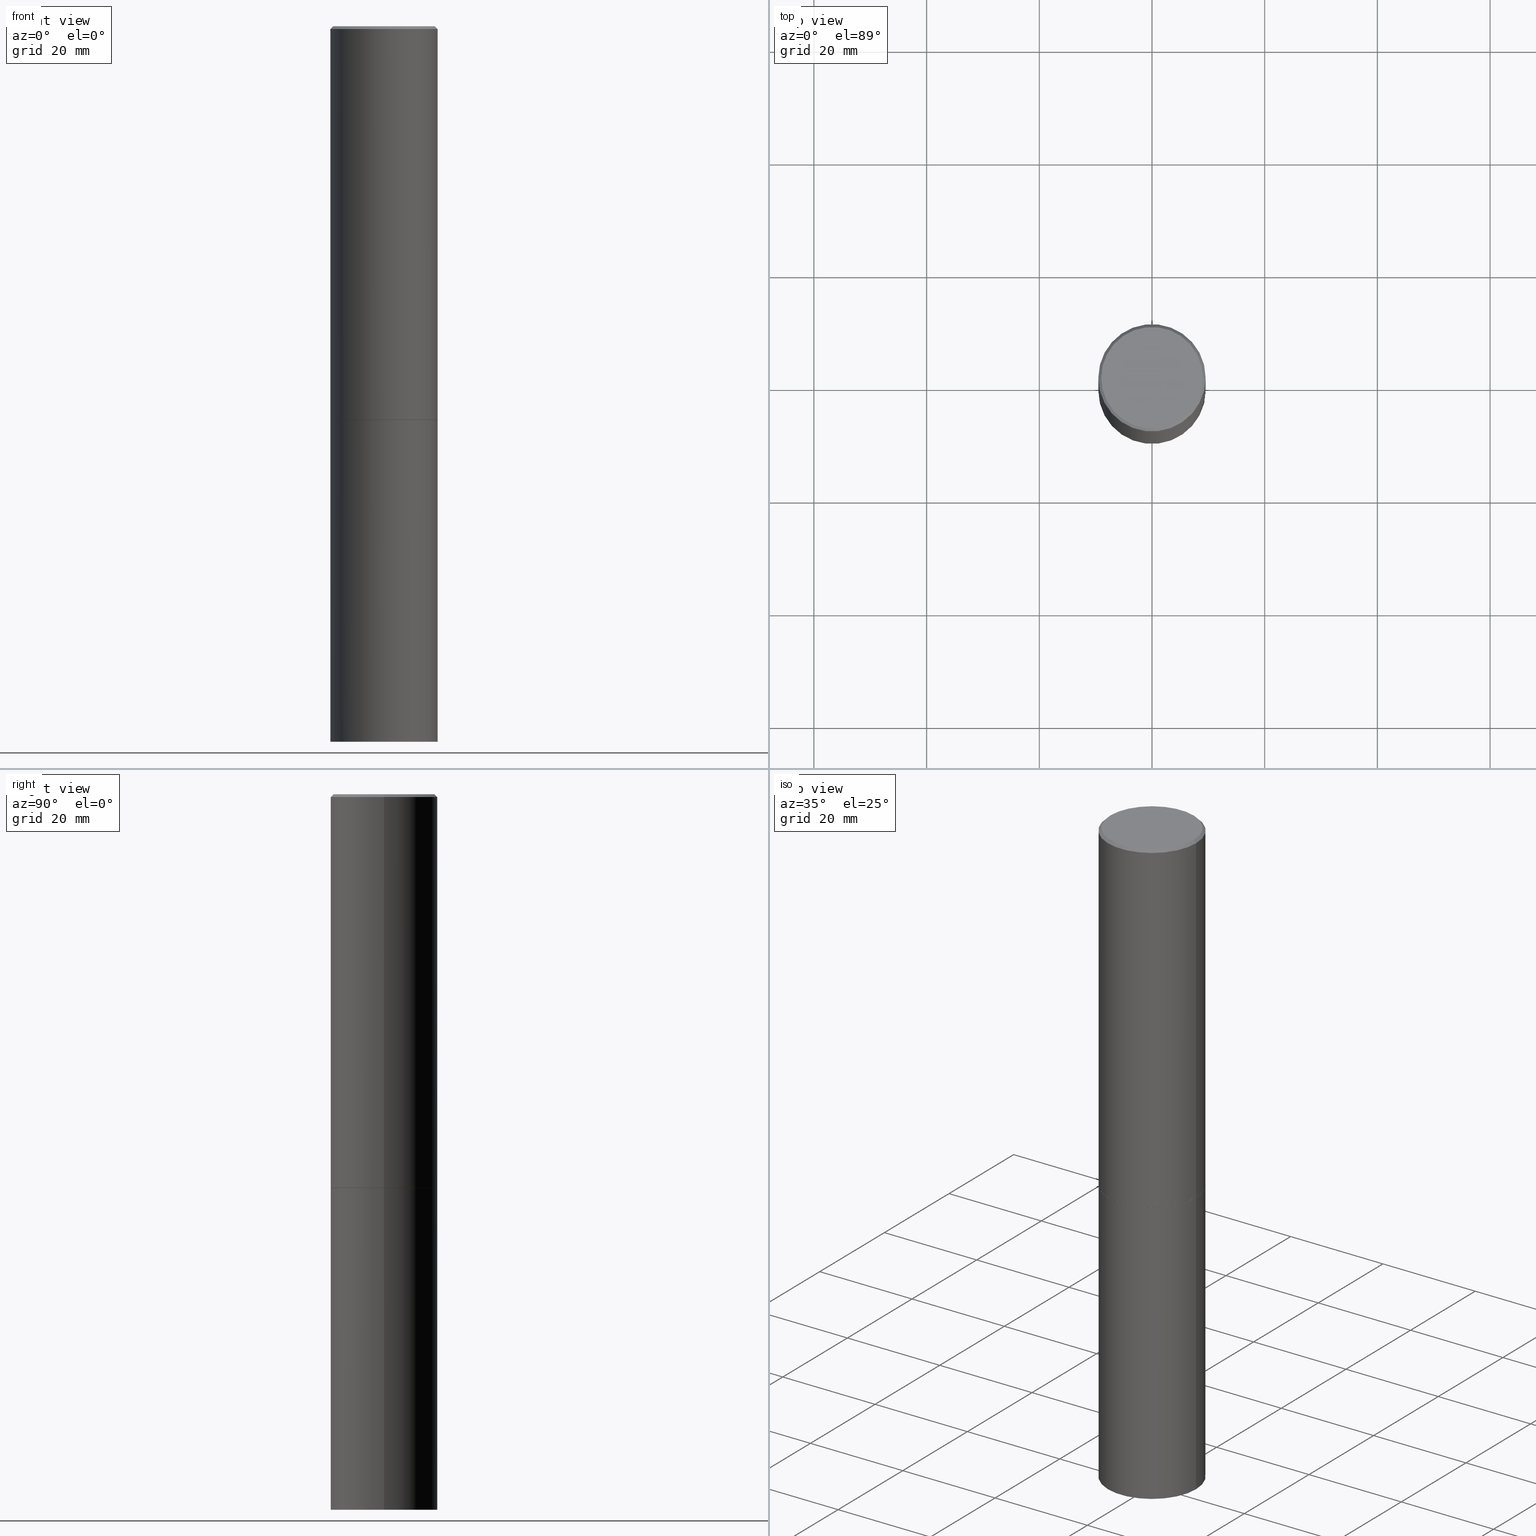
[diagram: canonical four-view strip — front | top / right | iso, engineering-drawing reading convention]
A machine part, canonical four-view strip (front | top / right | iso — engineering-drawing reading convention). The complete STEP part file that produces these views, byte-faithful:
ISO-10303-21;
HEADER;
FILE_DESCRIPTION (( 'STEP AP203' ),
    '1' );
FILE_NAME ('37631.STEP',
    '2024-02-27T22:32:35',
    ( '' ),
    ( '' ),
    'SwSTEP 2.0',
    'SolidWorks 2023',
    '' );
FILE_SCHEMA (( 'CONFIG_CONTROL_DESIGN' ));
ENDSEC;

DATA;
#1 = PERSON_AND_ORGANIZATION_ROLE ( 'classification_officer' ) ;
#2 = AXIS2_PLACEMENT_3D ( 'NONE', #272, #66, #190 ) ;
#3 = ORIENTED_EDGE ( 'NONE', *, *, #290, .T. ) ;
#4 = EDGE_CURVE ( 'NONE', #331, #44, #143, .T. ) ;
#5 = EDGE_LOOP ( 'NONE', ( #183, #359, #329, #315 ) ) ;
#6 = DIRECTION ( 'NONE',  ( -2.445468806185136597E-29, 3.491481338843145583E-15, 1.000000000000000000 ) ) ;
#7 = AXIS2_PLACEMENT_3D ( 'NONE', #15, #20, #246 ) ;
#8 = DIRECTION ( 'NONE',  ( -2.445468806185136597E-29, 3.491481338843145583E-15, 1.000000000000000000 ) ) ;
#9 = CARTESIAN_POINT ( 'NONE',  ( -0.3749999999999999445, -2.169420654527958984E-15, -2.749000000000000554 ) ) ;
#10 = DIRECTION ( 'NONE',  ( 2.438088387897960049E-29, -3.491481338843145188E-15, -1.000000000000000000 ) ) ;
#11 = DIRECTION ( 'NONE',  ( -2.445468806185136597E-29, 3.491481338843145583E-15, 1.000000000000000000 ) ) ;
#12 = PRODUCT_DEFINITION_FORMATION_WITH_SPECIFIED_SOURCE ( 'ANY', '', #286, .NOT_KNOWN. ) ;
#13 = FACE_OUTER_BOUND ( 'NONE', #73, .T. ) ;
#14 = CC_DESIGN_PERSON_AND_ORGANIZATION_ASSIGNMENT ( #117, #257, ( #286 ) ) ;
#15 = CARTESIAN_POINT ( 'NONE',  ( 6.722593748202942280E-29, -9.598082200479810007E-15, -2.749000000000000554 ) ) ;
#16 = LENGTH_MEASURE_WITH_UNIT ( LENGTH_MEASURE( 0.02539999999999999897 ), #153 );
#17 = DIRECTION ( 'NONE',  ( 2.445468806185136597E-29, -3.491481338843145583E-15, -1.000000000000000000 ) ) ;
#18 = ORIENTED_EDGE ( 'NONE', *, *, #205, .T. ) ;
#19 = LOCAL_TIME ( 17, 32, 35.00000000000000000, #119 ) ;
#20 = DIRECTION ( 'NONE',  ( -2.445468806185136597E-29, 3.491481338843145583E-15, 1.000000000000000000 ) ) ;
#21 = ORIENTED_EDGE ( 'NONE', *, *, #4, .F. ) ;
#22 = VERTEX_POINT ( 'NONE', #63 ) ;
#23 = ORIENTED_EDGE ( 'NONE', *, *, #39, .T. ) ;
#24 = EDGE_CURVE ( 'NONE', #292, #149, #202, .T. ) ;
#25 = CIRCLE ( 'NONE', #150, 0.3549999999999997047 ) ;
#26 = MECHANICAL_CONTEXT ( 'NONE', #105, 'mechanical' ) ;
#27 = APPROVAL_DATE_TIME ( #83, #271 ) ;
#28 = CARTESIAN_POINT ( 'NONE',  ( 0.3749999999999996114, -2.642516375941185268E-15, -0.02000000000000005940 ) ) ;
#29 = PERSON_AND_ORGANIZATION ( #52, #209 ) ;
#30 = CC_DESIGN_PERSON_AND_ORGANIZATION_ASSIGNMENT ( #29, #1, ( #225 ) ) ;
#31 = CIRCLE ( 'NONE', #294, 0.3739999999999999991 ) ;
#32 = CARTESIAN_POINT ( 'NONE',  ( 6.722593748202942280E-29, -9.598082200479810007E-15, -2.749000000000000554 ) ) ;
#33 = EDGE_LOOP ( 'NONE', ( #197, #3, #169, #54 ) ) ;
#34 = CARTESIAN_POINT ( 'NONE',  ( 6.725039217009124520E-29, -9.601573681818649859E-15, -2.750000000000000000 ) ) ;
#35 = AXIS2_PLACEMENT_3D ( 'NONE', #314, #6, #120 ) ;
#36 = DIRECTION ( 'NONE',  ( -2.445468806185136597E-29, 3.491481338843145583E-15, 1.000000000000000000 ) ) ;
#37 = DIRECTION ( 'NONE',  ( -2.445468806185136597E-29, 3.491481338843145583E-15, 1.000000000000000000 ) ) ;
#38 = LINE ( 'NONE', #317, #261 ) ;
#39 = EDGE_CURVE ( 'NONE', #22, #301, #59, .T. ) ;
#40 = CARTESIAN_POINT ( 'NONE',  ( 2.478951750578622237E-15, 0.3549999999999997047, -1.235207362799215228E-15 ) ) ;
#41 = VECTOR ( 'NONE', #69, 39.37007874015748143 ) ;
#42 = LOCAL_TIME ( 17, 32, 35.00000000000000000, #364 ) ;
#43 = LINE ( 'NONE', #168, #124 ) ;
#44 = VERTEX_POINT ( 'NONE', #260 ) ;
#45 = DIRECTION ( 'NONE',  ( 0.000000000000000000, 0.000000000000000000, 1.000000000000000000 ) ) ;
#46 = CARTESIAN_POINT ( 'NONE',  ( 0.3739999999999999991, -1.221320172327331386E-14, -2.750000000000000000 ) ) ;
#47 = DIRECTION ( 'NONE',  ( -2.445468806185136877E-29, 3.491481338843145188E-15, 1.000000000000000000 ) ) ;
#48 = EDGE_LOOP ( 'NONE', ( #23, #137, #287, #92 ) ) ;
#49 = ORIENTED_EDGE ( 'NONE', *, *, #140, .F. ) ;
#50 = ADVANCED_FACE ( 'NONE', ( #198 ), #339, .T. ) ;
#51 = CALENDAR_DATE ( 2024, 27, 2 ) ;
#52 = PERSON ( 'UNSPECIFIED', 'UNSPECIFIED', 'UNSPECIFIED', ('UNSPECIFIED'), ('UNSPECIFIED'), ('UNSPECIFIED') ) ;
#53 = PERSON_AND_ORGANIZATION ( #52, #209 ) ;
#54 = ORIENTED_EDGE ( 'NONE', *, *, #318, .F. ) ;
#55 = PRODUCT_DEFINITION ( 'UNKNOWN', '', #12, #255 ) ;
#56 = PERSON_AND_ORGANIZATION_ROLE ( 'creator' ) ;
#57 = DIRECTION ( 'NONE',  ( 1.000000000000000000, -6.982962677686265922E-15, 4.876176775795935793E-29 ) ) ;
#58 = DATE_AND_TIME ( #51, #42 ) ;
#59 = CIRCLE ( 'NONE', #35, 0.3750000000000000555 ) ;
#60 = LOCAL_TIME ( 17, 32, 35.00000000000000000, #335 ) ;
#61 = CARTESIAN_POINT ( 'NONE',  ( -2.087702828670439639E-46, 2.980686340760894400E-32, 8.537024980200822558E-18 ) ) ;
#62 = EDGE_CURVE ( 'NONE', #175, #292, #208, .T. ) ;
#63 = CARTESIAN_POINT ( 'NONE',  ( 0.3750000000000000555, -2.007601769834807990E-14, -5.000000000000000000 ) ) ;
#64 = CARTESIAN_POINT ( 'NONE',  ( 4.890937612370288047E-31, -6.982962677686311331E-17, -0.02000000000000005940 ) ) ;
#65 = AXIS2_PLACEMENT_3D ( 'NONE', #40, #159, #348 ) ;
#66 = DIRECTION ( 'NONE',  ( -2.438088387897960049E-29, 3.491481338843145188E-15, 1.000000000000000000 ) ) ;
#67 = APPROVAL_PERSON_ORGANIZATION ( #122, #121, #82 ) ;
#68 = MANIFOLD_SOLID_BREP ( 'Body-Move/Copy2[2]', #116 ) ;
#69 = DIRECTION ( 'NONE',  ( -2.445468806185136877E-29, 3.491481338843145188E-15, 1.000000000000000000 ) ) ;
#70 = EDGE_CURVE ( 'NONE', #110, #167, #96, .T. ) ;
#71 = DIRECTION ( 'NONE',  ( 2.438088387897960049E-29, -3.491481338843145188E-15, -1.000000000000000000 ) ) ;
#72 = DIRECTION ( 'NONE',  ( 1.000000000000000000, -6.982962677686265133E-15, 0.000000000000000000 ) ) ;
#73 = EDGE_LOOP ( 'NONE', ( #353, #115, #204, #211 ) ) ;
#74 = VECTOR ( 'NONE', #47, 39.37007874015748143 ) ;
#75 = APPROVAL_PERSON_ORGANIZATION ( #365, #146, #203 ) ;
#76 = CARTESIAN_POINT ( 'NONE',  ( 0.000000000000000000, 0.000000000000000000, 0.000000000000000000 ) ) ;
#77 = DIRECTION ( 'NONE',  ( -2.445468806185136597E-29, 3.491481338843145583E-15, 1.000000000000000000 ) ) ;
#78 = AXIS2_PLACEMENT_3D ( 'NONE', #293, #8, #132 ) ;
#79 = VERTEX_POINT ( 'NONE', #222 ) ;
#80 = LINE ( 'NONE', #358, #74 ) ;
#81 = EDGE_CURVE ( 'NONE', #44, #331, #31, .T. ) ;
#82 = APPROVAL_ROLE ( '' ) ;
#83 = DATE_AND_TIME ( #311, #60 ) ;
#84 = EDGE_CURVE ( 'NONE', #291, #172, #332, .T. ) ;
#85 = DIRECTION ( 'NONE',  ( -2.445468806185136597E-29, 3.491481338843145583E-15, 1.000000000000000000 ) ) ;
#86 = PERSON_AND_ORGANIZATION ( #52, #209 ) ;
#87 = CARTESIAN_POINT ( 'NONE',  ( 0.000000000000000000, 0.000000000000000000, 0.000000000000000000 ) ) ;
#88 = APPROVAL_STATUS ( 'not_yet_approved' ) ;
#89 = ORIENTED_EDGE ( 'NONE', *, *, #84, .T. ) ;
#90 = EDGE_CURVE ( 'NONE', #149, #79, #319, .T. ) ;
#91 = AXIS2_PLACEMENT_3D ( 'NONE', #101, #71, #270 ) ;
#92 = ORIENTED_EDGE ( 'NONE', *, *, #99, .F. ) ;
#93 = DIRECTION ( 'NONE',  ( -2.445468806185136597E-29, 3.491481338843145583E-15, 1.000000000000000000 ) ) ;
#94 = DIMENSIONAL_EXPONENTS ( 1.000000000000000000, 0.000000000000000000, 0.000000000000000000, 0.000000000000000000, 0.000000000000000000, 0.000000000000000000, 0.000000000000000000 ) ;
#95 = CARTESIAN_POINT ( 'NONE',  ( 6.725039217009124520E-29, -9.601573681818649859E-15, -2.750000000000000000 ) ) ;
#96 = CIRCLE ( 'NONE', #173, 0.3750000000000000555 ) ;
#97 = FACE_OUTER_BOUND ( 'NONE', #187, .T. ) ;
#98 = CONICAL_SURFACE ( 'NONE', #345, 0.3749999999999996114, 0.7853981633974447263 ) ;
#99 = EDGE_CURVE ( 'NONE', #22, #172, #212, .T. ) ;
#100 = DIRECTION ( 'NONE',  ( -2.445468806185136597E-29, 3.491481338843145583E-15, 1.000000000000000000 ) ) ;
#101 = CARTESIAN_POINT ( 'NONE',  ( 2.618611004132417464E-15, 0.3749999999999903966, -2.750000000000000888 ) ) ;
#102 = ORIENTED_EDGE ( 'NONE', *, *, #24, .T. ) ;
#103 = CARTESIAN_POINT ( 'NONE',  ( 0.3749999999999998335, -2.618611004132348439E-15, 1.828566290923475082E-29 ) ) ;
#104 = AXIS2_PLACEMENT_3D ( 'NONE', #138, #356, #221 ) ;
#105 = APPLICATION_CONTEXT ( 'configuration controlled 3d designs of mechanical parts and assemblies' ) ;
#106 = CARTESIAN_POINT ( 'NONE',  ( 0.000000000000000000, 0.000000000000000000, 0.000000000000000000 ) ) ;
#107 = EDGE_LOOP ( 'NONE', ( #180, #233, #312, #49 ) ) ;
#108 = CARTESIAN_POINT ( 'NONE',  ( -0.3750000000000000555, 2.664535259100376091E-15, -1.844600658845589598E-29 ) ) ;
#109 = DIRECTION ( 'NONE',  ( 0.7071067811868130271, -2.468850131085038979E-15, 0.7071067811862817853 ) ) ;
#110 = VERTEX_POINT ( 'NONE', #9 ) ;
#111 = AXIS2_PLACEMENT_3D ( 'NONE', #61, #182, #265 ) ;
#112 = CONICAL_SURFACE ( 'NONE', #104, 0.3749999999999996114, 0.7853981633974447263 ) ;
#113 = CALENDAR_DATE ( 2024, 27, 2 ) ;
#114 = ADVANCED_FACE ( 'NONE', ( #126 ), #133, .F. ) ;
#115 = ORIENTED_EDGE ( 'NONE', *, *, #160, .T. ) ;
#116 = CLOSED_SHELL ( 'NONE', ( #226, #50, #342, #308, #134, #174, #114, #165 ) ) ;
#117 = PERSON_AND_ORGANIZATION ( #52, #209 ) ;
#118 = ORIENTED_EDGE ( 'NONE', *, *, #90, .T. ) ;
#119 = COORDINATED_UNIVERSAL_TIME_OFFSET ( 5, 0, .BEHIND. ) ;
#120 = DIRECTION ( 'NONE',  ( 1.000000000000000000, -6.982962677686266711E-15, 0.000000000000000000 ) ) ;
#121 = APPROVAL ( #151, 'UNSPECIFIED' ) ;
#122 = PERSON_AND_ORGANIZATION ( #52, #209 ) ;
#123 = EDGE_LOOP ( 'NONE', ( #366, #341 ) ) ;
#124 = VECTOR ( 'NONE', #109, 39.37007874015748854 ) ;
#125 = LOCAL_TIME ( 17, 32, 35.00000000000000000, #263 ) ;
#126 = FACE_OUTER_BOUND ( 'NONE', #337, .T. ) ;
#127 = FACE_OUTER_BOUND ( 'NONE', #107, .T. ) ;
#128 = ADVANCED_FACE ( 'NONE', ( #243 ), #240, .T. ) ;
#129 = DIRECTION ( 'NONE',  ( -1.000000000000000000, 6.982962677686265922E-15, -4.876176775795935793E-29 ) ) ;
#130 =( NAMED_UNIT ( * ) PLANE_ANGLE_UNIT ( ) SI_UNIT ( $, .RADIAN. ) );
#131 = AXIS2_PLACEMENT_3D ( 'NONE', #34, #85, #288 ) ;
#132 = DIRECTION ( 'NONE',  ( 1.000000000000000000, -6.982962677686266711E-15, 0.000000000000000000 ) ) ;
#133 = PLANE ( 'NONE',  #2 ) ;
#134 = ADVANCED_FACE ( 'NONE', ( #127 ), #320, .T. ) ;
#135 = FACE_OUTER_BOUND ( 'NONE', #207, .T. ) ;
#136 = DIRECTION ( 'NONE',  ( -1.000000000000000000, 6.982962677686266711E-15, 0.000000000000000000 ) ) ;
#137 = ORIENTED_EDGE ( 'NONE', *, *, #282, .T. ) ;
#138 = CARTESIAN_POINT ( 'NONE',  ( 4.890937612370288047E-31, -6.982962677686311331E-17, -0.02000000000000005940 ) ) ;
#139 = ORIENTED_EDGE ( 'NONE', *, *, #298, .T. ) ;
#140 = EDGE_CURVE ( 'NONE', #79, #149, #163, .T. ) ;
#141 = DIRECTION ( 'NONE',  ( 1.000000000000000000, -6.982962677686265922E-15, 4.876176775795935793E-29 ) ) ;
#142 = APPLICATION_PROTOCOL_DEFINITION ( 'international standard', 'config_control_design', 1994, #105 ) ;
#143 = CIRCLE ( 'NONE', #131, 0.3739999999999999991 ) ;
#144 = AXIS2_PLACEMENT_3D ( 'NONE', #326, #77, #300 ) ;
#145 = APPROVAL_ROLE ( '' ) ;
#146 = APPROVAL ( #313, 'UNSPECIFIED' ) ;
#147 = CALENDAR_DATE ( 2024, 27, 2 ) ;
#148 = ORIENTED_EDGE ( 'NONE', *, *, #232, .T. ) ;
#149 = VERTEX_POINT ( 'NONE', #215 ) ;
#150 = AXIS2_PLACEMENT_3D ( 'NONE', #156, #93, #328 ) ;
#151 = APPROVAL_STATUS ( 'not_yet_approved' ) ;
#152 = ORIENTED_EDGE ( 'NONE', *, *, #200, .T. ) ;
#153 =( LENGTH_UNIT ( ) NAMED_UNIT ( * ) SI_UNIT ( $, .METRE. ) );
#154 = PERSON_AND_ORGANIZATION_ROLE ( 'creator' ) ;
#155 = ORIENTED_EDGE ( 'NONE', *, *, #232, .F. ) ;
#156 = CARTESIAN_POINT ( 'NONE',  ( -2.087702828670439639E-46, 2.980686340760894400E-32, 8.537024980200822558E-18 ) ) ;
#157 = CIRCLE ( 'NONE', #144, 0.3750000000000000555 ) ;
#158 = ADVANCED_BREP_SHAPE_REPRESENTATION ( '37631', ( #191, #68, #242 ), #361 ) ;
#159 = DIRECTION ( 'NONE',  ( 2.438088387897960049E-29, -3.491481338843145188E-15, -1.000000000000000000 ) ) ;
#160 = EDGE_CURVE ( 'NONE', #44, #110, #38, .T. ) ;
#161 = CARTESIAN_POINT ( 'NONE',  ( 0.3750000000000000555, -1.222018468595100145E-14, -2.750000000000000000 ) ) ;
#162 = FACE_OUTER_BOUND ( 'NONE', #250, .T. ) ;
#163 = CIRCLE ( 'NONE', #223, 0.3749999999999996114 ) ;
#164 = AXIS2_PLACEMENT_3D ( 'NONE', #106, #262, #227 ) ;
#165 = ADVANCED_FACE ( 'NONE', ( #162 ), #351, .F. ) ;
#166 = DIRECTION ( 'NONE',  ( -2.445468806185136597E-29, 3.491481338843145583E-15, 1.000000000000000000 ) ) ;
#167 = VERTEX_POINT ( 'NONE', #295 ) ;
#168 = CARTESIAN_POINT ( 'NONE',  ( 0.3739999999999999991, -1.221320172327331386E-14, -2.750000000000000000 ) ) ;
#169 = ORIENTED_EDGE ( 'NONE', *, *, #90, .F. ) ;
#170 = FACE_OUTER_BOUND ( 'NONE', #264, .T. ) ;
#171 = CARTESIAN_POINT ( 'NONE',  ( -0.3750000000000000555, -1.086495492891681496E-14, -2.750000000000000000 ) ) ;
#172 = VERTEX_POINT ( 'NONE', #161 ) ;
#173 = AXIS2_PLACEMENT_3D ( 'NONE', #32, #251, #357 ) ;
#174 = ADVANCED_FACE ( 'NONE', ( #97 ), #360, .T. ) ;
#175 = VERTEX_POINT ( 'NONE', #321 ) ;
#176 =( NAMED_UNIT ( * ) SI_UNIT ( $, .STERADIAN. ) SOLID_ANGLE_UNIT ( ) );
#177 = ADVANCED_FACE ( 'NONE', ( #213 ), #346, .F. ) ;
#178 = CIRCLE ( 'NONE', #7, 0.3750000000000000555 ) ;
#179 = SHAPE_DEFINITION_REPRESENTATION ( #302, #158 ) ;
#180 = ORIENTED_EDGE ( 'NONE', *, *, #290, .F. ) ;
#181 = DATE_AND_TIME ( #210, #285 ) ;
#182 = DIRECTION ( 'NONE',  ( -2.445468806185136597E-29, 3.491481338843145583E-15, 1.000000000000000000 ) ) ;
#183 = ORIENTED_EDGE ( 'NONE', *, *, #282, .F. ) ;
#184 = PERSON_AND_ORGANIZATION ( #52, #209 ) ;
#185 = DIRECTION ( 'NONE',  ( 0.7071067811865450192, -7.319954787623246579E-15, -0.7071067811865500152 ) ) ;
#186 = CARTESIAN_POINT ( 'NONE',  ( 6.725039217009124520E-29, -9.601573681818649859E-15, -2.750000000000000000 ) ) ;
#187 = EDGE_LOOP ( 'NONE', ( #306, #252, #139, #229 ) ) ;
#188 = AXIS2_PLACEMENT_3D ( 'NONE', #189, #10, #129 ) ;
#189 = CARTESIAN_POINT ( 'NONE',  ( 2.618611004132472290E-15, 0.3749999999999825695, -5.000000000000000888 ) ) ;
#190 = DIRECTION ( 'NONE',  ( 1.000000000000000000, -6.982962677686265922E-15, 4.876176775795935793E-29 ) ) ;
#191 = MANIFOLD_SOLID_BREP ( 'Body-Move/Copy2[1]', #248 ) ;
#192 = LINE ( 'NONE', #297, #303 ) ;
#193 = AXIS2_PLACEMENT_3D ( 'NONE', #218, #323, #72 ) ;
#194 = CC_DESIGN_APPROVAL ( #146, ( #55 ) ) ;
#195 = DIRECTION ( 'NONE',  ( 1.000000000000000000, -6.982962677686266711E-15, 0.000000000000000000 ) ) ;
#196 = ORIENTED_EDGE ( 'NONE', *, *, #81, .F. ) ;
#197 = ORIENTED_EDGE ( 'NONE', *, *, #307, .T. ) ;
#198 = FACE_OUTER_BOUND ( 'NONE', #33, .T. ) ;
#199 = CARTESIAN_POINT ( 'NONE',  ( 0.3549999999999997047, -2.538996582575038287E-15, 8.537024980218368550E-18 ) ) ;
#200 = EDGE_CURVE ( 'NONE', #175, #79, #192, .T. ) ;
#201 = APPROVAL_DATE_TIME ( #181, #146 ) ;
#202 = LINE ( 'NONE', #28, #354 ) ;
#203 = APPROVAL_ROLE ( '' ) ;
#204 = ORIENTED_EDGE ( 'NONE', *, *, #307, .F. ) ;
#205 = EDGE_CURVE ( 'NONE', #172, #291, #277, .T. ) ;
#206 = DATE_AND_TIME ( #147, #125 ) ;
#207 = EDGE_LOOP ( 'NONE', ( #258, #236, #152, #280 ) ) ;
#208 = CIRCLE ( 'NONE', #111, 0.3549999999999997047 ) ;
#209 = ORGANIZATION ( 'UNSPECIFIED', 'UNSPECIFIED', '' ) ;
#210 = CALENDAR_DATE ( 2024, 27, 2 ) ;
#211 = ORIENTED_EDGE ( 'NONE', *, *, #298, .F. ) ;
#212 = LINE ( 'NONE', #299, #41 ) ;
#213 = FACE_OUTER_BOUND ( 'NONE', #278, .T. ) ;
#214 = CC_DESIGN_APPROVAL ( #271, ( #225 ) ) ;
#215 = CARTESIAN_POINT ( 'NONE',  ( 0.3749999999999996114, -2.642516375941185268E-15, -0.02000000000000005940 ) ) ;
#216 = DIRECTION ( 'NONE',  ( 1.000000000000000000, -6.982962677686265133E-15, 0.000000000000000000 ) ) ;
#217 = CC_DESIGN_DATE_AND_TIME_ASSIGNMENT ( #58, #338, ( #225 ) ) ;
#218 = CARTESIAN_POINT ( 'NONE',  ( 6.725039217009124520E-29, -9.601573681818649859E-15, -2.750000000000000000 ) ) ;
#219 = CC_DESIGN_SECURITY_CLASSIFICATION ( #225, ( #12 ) ) ;
#220 = DIRECTION ( 'NONE',  ( -2.445468806185136877E-29, 3.491481338843145188E-15, 1.000000000000000000 ) ) ;
#221 = DIRECTION ( 'NONE',  ( -1.000000000000000000, 6.982962677686266711E-15, 0.000000000000000000 ) ) ;
#222 = CARTESIAN_POINT ( 'NONE',  ( -0.3749999999999996114, 2.548781377355483957E-15, -0.02000000000000005940 ) ) ;
#223 = AXIS2_PLACEMENT_3D ( 'NONE', #64, #37, #195 ) ;
#224 = LINE ( 'NONE', #108, #324 ) ;
#225 = SECURITY_CLASSIFICATION ( '', '', #228 ) ;
#226 = ADVANCED_FACE ( 'NONE', ( #13 ), #349, .T. ) ;
#227 = DIRECTION ( 'NONE',  ( 1.000000000000000000, -6.982962677686265922E-15, 4.876176775795935793E-29 ) ) ;
#228 = SECURITY_CLASSIFICATION_LEVEL ( 'unclassified' ) ;
#229 = ORIENTED_EDGE ( 'NONE', *, *, #70, .F. ) ;
#230 = AXIS2_PLACEMENT_3D ( 'NONE', #267, #11, #350 ) ;
#231 = DATE_AND_TIME ( #113, #19 ) ;
#232 = EDGE_CURVE ( 'NONE', #292, #175, #25, .T. ) ;
#233 = ORIENTED_EDGE ( 'NONE', *, *, #70, .T. ) ;
#234 = PERSON_AND_ORGANIZATION ( #52, #209 ) ;
#235 = DIRECTION ( 'NONE',  ( -2.445468806185136597E-29, 3.491481338843145583E-15, 1.000000000000000000 ) ) ;
#236 = ORIENTED_EDGE ( 'NONE', *, *, #62, .F. ) ;
#237 = APPROVAL_PERSON_ORGANIZATION ( #86, #271, #145 ) ;
#238 = ADVANCED_FACE ( 'NONE', ( #254 ), #279, .T. ) ;
#239 = DIRECTION ( 'NONE',  ( 1.000000000000000000, -6.982962677686265133E-15, 0.000000000000000000 ) ) ;
#240 = PLANE ( 'NONE',  #188 ) ;
#241 = CARTESIAN_POINT ( 'NONE',  ( 0.000000000000000000, 0.000000000000000000, 0.000000000000000000 ) ) ;
#242 = AXIS2_PLACEMENT_3D ( 'NONE', #76, #45, #343 ) ;
#243 = FACE_OUTER_BOUND ( 'NONE', #123, .T. ) ;
#244 = CC_DESIGN_PERSON_AND_ORGANIZATION_ASSIGNMENT ( #234, #154, ( #55 ) ) ;
#245 = DIRECTION ( 'NONE',  ( -2.445468806185136597E-29, 3.491481338843145583E-15, 1.000000000000000000 ) ) ;
#246 = DIRECTION ( 'NONE',  ( 1.000000000000000000, -6.982962677686266711E-15, 0.000000000000000000 ) ) ;
#247 = CC_DESIGN_PERSON_AND_ORGANIZATION_ASSIGNMENT ( #184, #283, ( #12 ) ) ;
#248 = CLOSED_SHELL ( 'NONE', ( #238, #128, #177, #363 ) ) ;
#249 = FACE_OUTER_BOUND ( 'NONE', #5, .T. ) ;
#250 = EDGE_LOOP ( 'NONE', ( #310, #148 ) ) ;
#251 = DIRECTION ( 'NONE',  ( -2.445468806185136597E-29, 3.491481338843145583E-15, 1.000000000000000000 ) ) ;
#252 = ORIENTED_EDGE ( 'NONE', *, *, #81, .T. ) ;
#253 = AXIS2_PLACEMENT_3D ( 'NONE', #241, #245, #316 ) ;
#254 = FACE_OUTER_BOUND ( 'NONE', #48, .T. ) ;
#255 = DESIGN_CONTEXT ( 'detailed design', #325, 'design' ) ;
#256 = COORDINATED_UNIVERSAL_TIME_OFFSET ( 5, 0, .BEHIND. ) ;
#257 = PERSON_AND_ORGANIZATION_ROLE ( 'design_owner' ) ;
#258 = ORIENTED_EDGE ( 'NONE', *, *, #24, .F. ) ;
#259 = CC_DESIGN_DATE_AND_TIME_ASSIGNMENT ( #206, #340, ( #55 ) ) ;
#260 = CARTESIAN_POINT ( 'NONE',  ( -0.3739999999999999991, -6.938845395727654346E-15, -2.750000000000000000 ) ) ;
#261 = VECTOR ( 'NONE', #296, 39.37007874015748854 ) ;
#262 = DIRECTION ( 'NONE',  ( -2.445468806185136597E-29, 3.491481338843145583E-15, 1.000000000000000000 ) ) ;
#263 = COORDINATED_UNIVERSAL_TIME_OFFSET ( 5, 0, .BEHIND. ) ;
#264 = EDGE_LOOP ( 'NONE', ( #155, #102, #118, #344 ) ) ;
#265 = DIRECTION ( 'NONE',  ( 1.000000000000000000, -6.982962677686265922E-15, 4.876231632511992107E-29 ) ) ;
#266 = PRODUCT_RELATED_PRODUCT_CATEGORY ( 'detail', '', ( #286 ) ) ;
#267 = CARTESIAN_POINT ( 'NONE',  ( 6.725039217009124520E-29, -9.601573681818649859E-15, -2.750000000000000000 ) ) ;
#268 = AXIS2_PLACEMENT_3D ( 'NONE', #95, #166, #274 ) ;
#269 = CARTESIAN_POINT ( 'NONE',  ( 6.725039217009124520E-29, -9.601573681818649859E-15, -2.750000000000000000 ) ) ;
#270 = DIRECTION ( 'NONE',  ( -1.000000000000000000, 6.982962677686265922E-15, -4.876176775795935793E-29 ) ) ;
#271 = APPROVAL ( #88, 'UNSPECIFIED' ) ;
#272 = CARTESIAN_POINT ( 'NONE',  ( 6.725039217009124520E-29, -9.601573681818649859E-15, -2.750000000000000000 ) ) ;
#273 = VECTOR ( 'NONE', #220, 39.37007874015748143 ) ;
#274 = DIRECTION ( 'NONE',  ( 1.000000000000000000, -6.982962677686266711E-15, 0.000000000000000000 ) ) ;
#275 = CARTESIAN_POINT ( 'NONE',  ( -0.3750000000000000555, -1.086495492891681496E-14, -5.000000000000000000 ) ) ;
#276 = CARTESIAN_POINT ( 'NONE',  ( 4.890937612370288047E-31, -6.982962677686311331E-17, -0.02000000000000005940 ) ) ;
#277 = CIRCLE ( 'NONE', #268, 0.3750000000000000555 ) ;
#278 = EDGE_LOOP ( 'NONE', ( #18, #89 ) ) ;
#279 = CYLINDRICAL_SURFACE ( 'NONE', #284, 0.3750000000000000555 ) ;
#280 = ORIENTED_EDGE ( 'NONE', *, *, #140, .T. ) ;
#281 = UNCERTAINTY_MEASURE_WITH_UNIT (LENGTH_MEASURE( 1.000000000000000082E-05 ), #334, 'distance_accuracy_value', 'NONE');
#282 = EDGE_CURVE ( 'NONE', #301, #291, #224, .T. ) ;
#283 = PERSON_AND_ORGANIZATION_ROLE ( 'design_supplier' ) ;
#284 = AXIS2_PLACEMENT_3D ( 'NONE', #327, #305, #141 ) ;
#285 = LOCAL_TIME ( 17, 32, 35.00000000000000000, #256 ) ;
#286 = PRODUCT ( '37631', '37631', '', ( #26 ) ) ;
#287 = ORIENTED_EDGE ( 'NONE', *, *, #205, .F. ) ;
#288 = DIRECTION ( 'NONE',  ( 1.000000000000000000, -6.982962677686265133E-15, 0.000000000000000000 ) ) ;
#289 = APPLICATION_PROTOCOL_DEFINITION ( 'international standard', 'config_control_design', 1994, #325 ) ;
#290 = EDGE_CURVE ( 'NONE', #110, #79, #80, .T. ) ;
#291 = VERTEX_POINT ( 'NONE', #171 ) ;
#292 = VERTEX_POINT ( 'NONE', #199 ) ;
#293 = CARTESIAN_POINT ( 'NONE',  ( 4.890937612370288047E-31, -6.982962677686311331E-17, -0.02000000000000005940 ) ) ;
#294 = AXIS2_PLACEMENT_3D ( 'NONE', #186, #36, #239 ) ;
#295 = CARTESIAN_POINT ( 'NONE',  ( 0.3750000000000000555, -1.221669320461216002E-14, -2.749000000000000554 ) ) ;
#296 = DIRECTION ( 'NONE',  ( -0.7071067811868130271, 7.493145998871311837E-15, 0.7071067811862817853 ) ) ;
#297 = CARTESIAN_POINT ( 'NONE',  ( -0.3749999999999996114, 2.548781377355483957E-15, -0.02000000000000005940 ) ) ;
#298 = EDGE_CURVE ( 'NONE', #331, #167, #43, .T. ) ;
#299 = CARTESIAN_POINT ( 'NONE',  ( 0.3750000000000000555, -2.618611004132350016E-15, 1.828566290923476203E-29 ) ) ;
#300 = DIRECTION ( 'NONE',  ( 1.000000000000000000, -6.982962677686266711E-15, 0.000000000000000000 ) ) ;
#301 = VERTEX_POINT ( 'NONE', #275 ) ;
#302 = PRODUCT_DEFINITION_SHAPE ( 'NONE', 'NONE',  #55 ) ;
#303 = VECTOR ( 'NONE', #347, 39.37007874015748143 ) ;
#304 = AXIS2_PLACEMENT_3D ( 'NONE', #87, #235, #57 ) ;
#305 = DIRECTION ( 'NONE',  ( -2.445468806185136597E-29, 3.491481338843145583E-15, 1.000000000000000000 ) ) ;
#306 = ORIENTED_EDGE ( 'NONE', *, *, #160, .F. ) ;
#307 = EDGE_CURVE ( 'NONE', #167, #110, #178, .T. ) ;
#308 = ADVANCED_FACE ( 'NONE', ( #135 ), #112, .T. ) ;
#309 = APPROVAL_DATE_TIME ( #231, #121 ) ;
#310 = ORIENTED_EDGE ( 'NONE', *, *, #62, .T. ) ;
#311 = CALENDAR_DATE ( 2024, 27, 2 ) ;
#312 = ORIENTED_EDGE ( 'NONE', *, *, #318, .T. ) ;
#313 = APPROVAL_STATUS ( 'not_yet_approved' ) ;
#314 = CARTESIAN_POINT ( 'NONE',  ( 1.222734403092568523E-28, -1.745740669421572989E-14, -5.000000000000000000 ) ) ;
#315 = ORIENTED_EDGE ( 'NONE', *, *, #84, .F. ) ;
#316 = DIRECTION ( 'NONE',  ( 1.000000000000000000, -6.982962677686265922E-15, 4.876176775795935793E-29 ) ) ;
#317 = CARTESIAN_POINT ( 'NONE',  ( -0.3739999999999999991, -6.944143850075875170E-15, -2.750000000000000000 ) ) ;
#318 = EDGE_CURVE ( 'NONE', #167, #149, #352, .T. ) ;
#319 = CIRCLE ( 'NONE', #78, 0.3749999999999996114 ) ;
#320 = CYLINDRICAL_SURFACE ( 'NONE', #253, 0.3749999999999998335 ) ;
#321 = CARTESIAN_POINT ( 'NONE',  ( -0.3549999999999997047, 2.513866563967053097E-15, 8.537024980183364388E-18 ) ) ;
#322 = CC_DESIGN_PERSON_AND_ORGANIZATION_ASSIGNMENT ( #53, #56, ( #12 ) ) ;
#323 = DIRECTION ( 'NONE',  ( -2.445468806185136597E-29, 3.491481338843145583E-15, 1.000000000000000000 ) ) ;
#324 = VECTOR ( 'NONE', #362, 39.37007874015748143 ) ;
#325 = APPLICATION_CONTEXT ( 'configuration controlled 3d designs of mechanical parts and assemblies' ) ;
#326 = CARTESIAN_POINT ( 'NONE',  ( 1.222734403092568523E-28, -1.745740669421572989E-14, -5.000000000000000000 ) ) ;
#327 = CARTESIAN_POINT ( 'NONE',  ( 0.000000000000000000, 0.000000000000000000, 0.000000000000000000 ) ) ;
#328 = DIRECTION ( 'NONE',  ( 1.000000000000000000, -6.982962677686265922E-15, 4.876231632511992107E-29 ) ) ;
#329 = ORIENTED_EDGE ( 'NONE', *, *, #99, .T. ) ;
#330 = EDGE_CURVE ( 'NONE', #301, #22, #157, .T. ) ;
#331 = VERTEX_POINT ( 'NONE', #46 ) ;
#332 = CIRCLE ( 'NONE', #230, 0.3750000000000000555 ) ;
#333 = CC_DESIGN_APPROVAL ( #121, ( #12 ) ) ;
#334 =( CONVERSION_BASED_UNIT ( 'INCH', #16 ) LENGTH_UNIT ( ) NAMED_UNIT ( #94 ) );
#335 = COORDINATED_UNIVERSAL_TIME_OFFSET ( 5, 0, .BEHIND. ) ;
#336 = AXIS2_PLACEMENT_3D ( 'NONE', #269, #100, #216 ) ;
#337 = EDGE_LOOP ( 'NONE', ( #21, #196 ) ) ;
#338 = DATE_TIME_ROLE ( 'classification_date' ) ;
#339 = CYLINDRICAL_SURFACE ( 'NONE', #304, 0.3749999999999998335 ) ;
#340 = DATE_TIME_ROLE ( 'creation_date' ) ;
#341 = ORIENTED_EDGE ( 'NONE', *, *, #330, .F. ) ;
#342 = ADVANCED_FACE ( 'NONE', ( #170 ), #98, .T. ) ;
#343 = DIRECTION ( 'NONE',  ( 1.000000000000000000, 0.000000000000000000, 0.000000000000000000 ) ) ;
#344 = ORIENTED_EDGE ( 'NONE', *, *, #200, .F. ) ;
#345 = AXIS2_PLACEMENT_3D ( 'NONE', #276, #17, #136 ) ;
#346 = PLANE ( 'NONE',  #91 ) ;
#347 = DIRECTION ( 'NONE',  ( -0.7071067811865450192, 2.468850131082230634E-15, -0.7071067811865500152 ) ) ;
#348 = DIRECTION ( 'NONE',  ( -1.000000000000000000, 6.982962677686265922E-15, -4.876176775795935793E-29 ) ) ;
#349 = CONICAL_SURFACE ( 'NONE', #193, 0.3739999999999999991, 0.7853981633978239785 ) ;
#350 = DIRECTION ( 'NONE',  ( 1.000000000000000000, -6.982962677686266711E-15, 0.000000000000000000 ) ) ;
#351 = PLANE ( 'NONE',  #65 ) ;
#352 = LINE ( 'NONE', #103, #273 ) ;
#353 = ORIENTED_EDGE ( 'NONE', *, *, #4, .T. ) ;
#354 = VECTOR ( 'NONE', #185, 39.37007874015748143 ) ;
#355 = CYLINDRICAL_SURFACE ( 'NONE', #164, 0.3750000000000000555 ) ;
#356 = DIRECTION ( 'NONE',  ( 2.445468806185136597E-29, -3.491481338843145583E-15, -1.000000000000000000 ) ) ;
#357 = DIRECTION ( 'NONE',  ( 1.000000000000000000, -6.982962677686266711E-15, 0.000000000000000000 ) ) ;
#358 = CARTESIAN_POINT ( 'NONE',  ( -0.3749999999999998335, 2.664535259100374514E-15, -1.844600658845588757E-29 ) ) ;
#359 = ORIENTED_EDGE ( 'NONE', *, *, #330, .T. ) ;
#360 = CONICAL_SURFACE ( 'NONE', #336, 0.3739999999999999991, 0.7853981633978239785 ) ;
#361 =( GEOMETRIC_REPRESENTATION_CONTEXT ( 3 ) GLOBAL_UNCERTAINTY_ASSIGNED_CONTEXT ( ( #281 ) ) GLOBAL_UNIT_ASSIGNED_CONTEXT ( ( #334, #130, #176 ) ) REPRESENTATION_CONTEXT ( 'NONE', 'WORKASPACE' ) );
#362 = DIRECTION ( 'NONE',  ( -2.445468806185136877E-29, 3.491481338843145188E-15, 1.000000000000000000 ) ) ;
#363 = ADVANCED_FACE ( 'NONE', ( #249 ), #355, .T. ) ;
#364 = COORDINATED_UNIVERSAL_TIME_OFFSET ( 5, 0, .BEHIND. ) ;
#365 = PERSON_AND_ORGANIZATION ( #52, #209 ) ;
#366 = ORIENTED_EDGE ( 'NONE', *, *, #39, .F. ) ;
ENDSEC;
END-ISO-10303-21;
